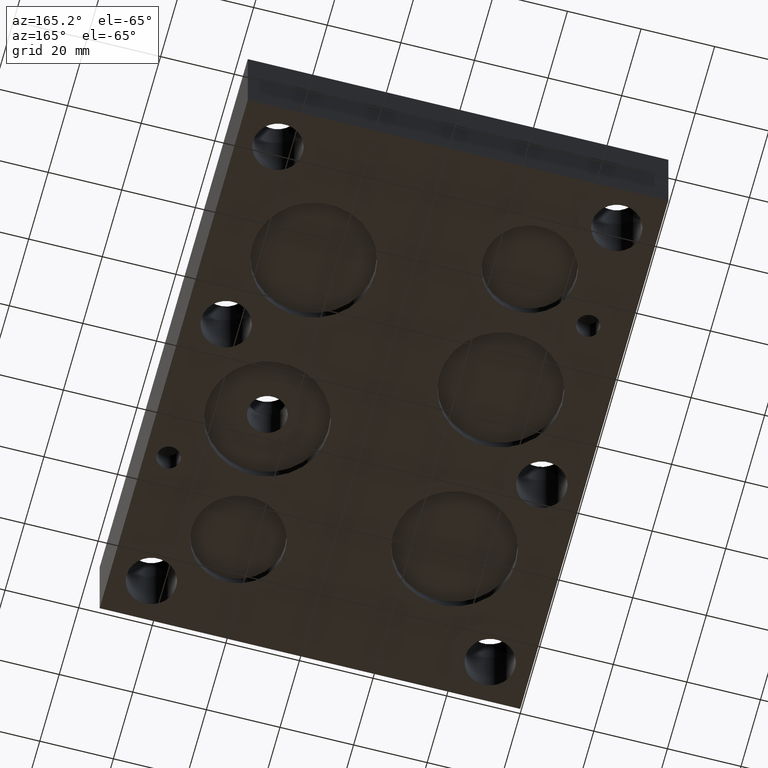
[diagram: clean part render]
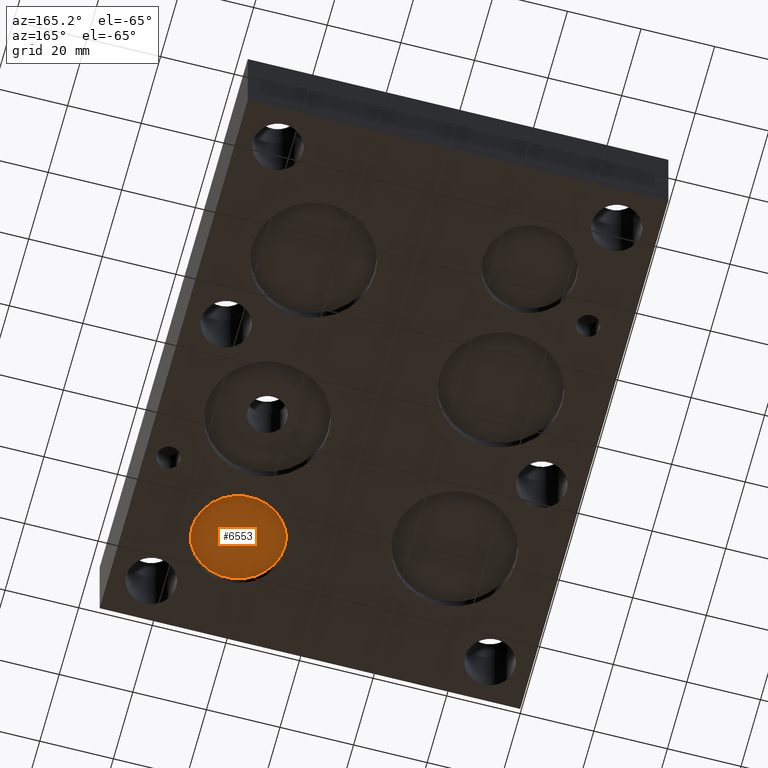
[diagram: same view with one face highlighted and labeled with its STEP entity id]
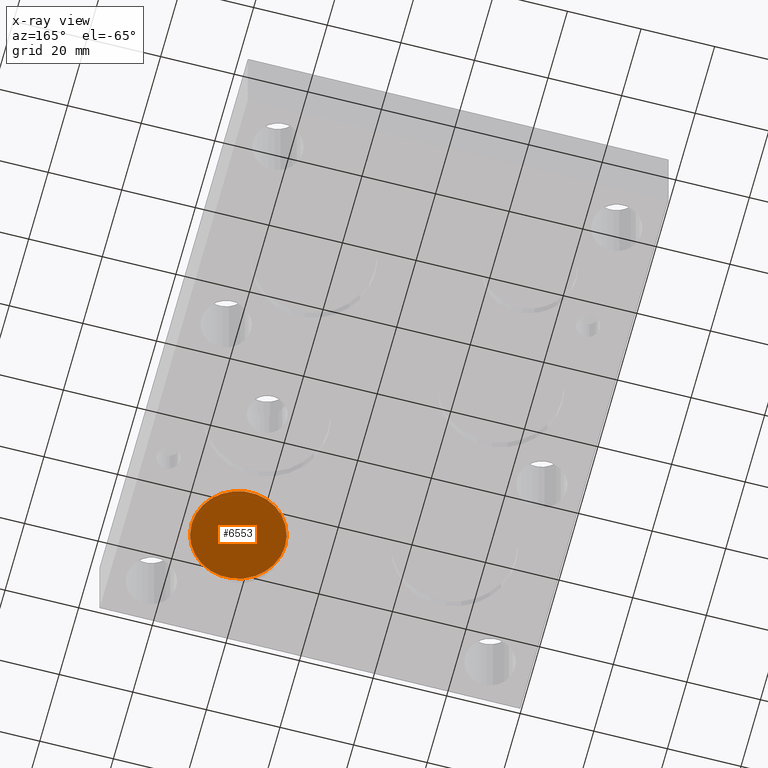
[diagram: x-ray of the same camera — body ghosted, the highlighted face saturated]
A machine part, auxiliary view. The second image highlights one B-rep face of the part: STEP entity #6553.
The next image is the same camera in x-ray: the body ghosted, the highlighted face saturated — about 0% of this face is hidden behind the body in this view.
In plain terms, the highlighted planar face has unit normal (0, 0, 1).
Its self-contained STEP definition (entity closure, byte-faithful):
#46=CIRCLE('',#6830,0.5);
#47=CIRCLE('',#6831,0.5);
#558=FACE_OUTER_BOUND('',#938,.T.);
#938=EDGE_LOOP('',(#5855,#5856));
#3138=VERTEX_POINT('',#11586);
#3139=VERTEX_POINT('',#11587);
#4063=EDGE_CURVE('',#3138,#3139,#46,.T.);
#4064=EDGE_CURVE('',#3139,#3138,#47,.T.);
#5855=ORIENTED_EDGE('',*,*,#4063,.T.);
#5856=ORIENTED_EDGE('',*,*,#4064,.T.);
#6225=PLANE('',#6829);
#6553=ADVANCED_FACE('',(#558),#6225,.F.);
#6829=AXIS2_PLACEMENT_3D('',#11585,#8021,#8022);
#6830=AXIS2_PLACEMENT_3D('',#11588,#8023,#8024);
#6831=AXIS2_PLACEMENT_3D('',#11589,#8025,#8026);
#8021=DIRECTION('center_axis',(0.,0.,1.));
#8022=DIRECTION('ref_axis',(1.,0.,0.));
#8023=DIRECTION('center_axis',(0.,0.,-1.));
#8024=DIRECTION('ref_axis',(1.,0.,0.));
#8025=DIRECTION('center_axis',(0.,0.,-1.));
#8026=DIRECTION('ref_axis',(1.,0.,0.));
#11585=CARTESIAN_POINT('Origin',(3.563,1.125,0.11));
#11586=CARTESIAN_POINT('',(3.813,1.125,0.11));
#11587=CARTESIAN_POINT('',(2.813,1.125,0.11));
#11588=CARTESIAN_POINT('Origin',(3.313,1.125,0.11));
#11589=CARTESIAN_POINT('Origin',(3.313,1.125,0.11));